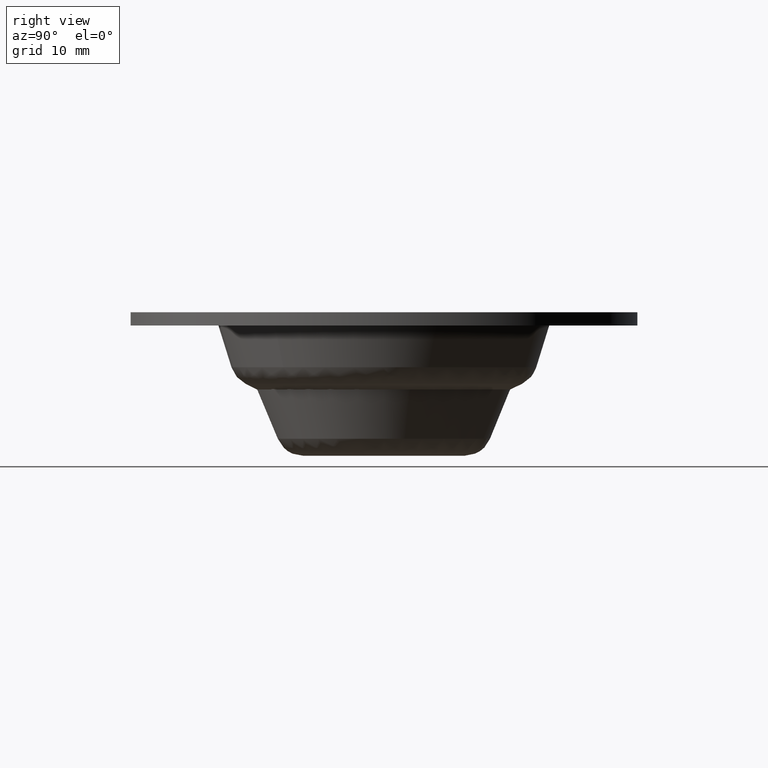
[diagram: clean part render]
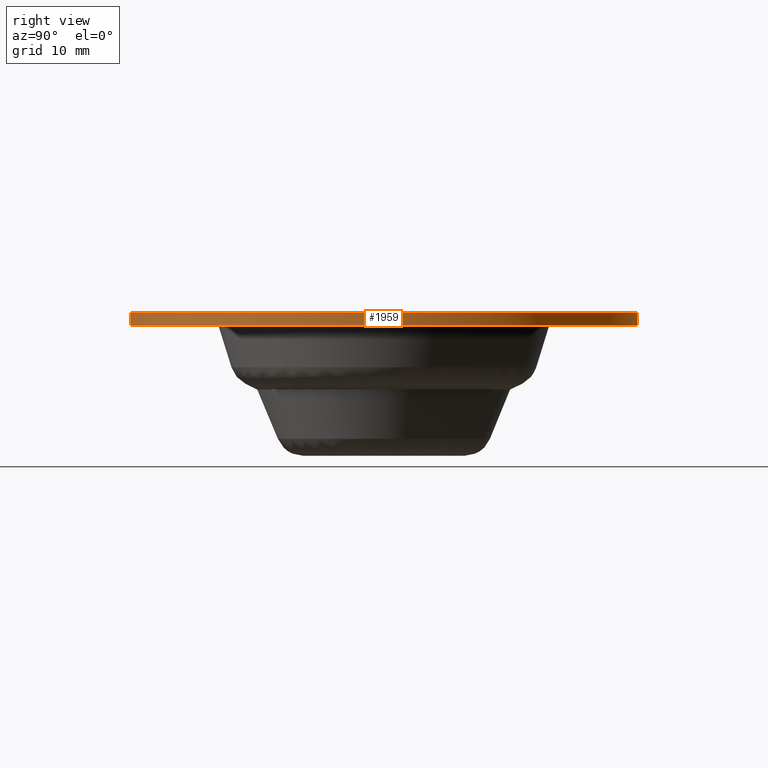
[diagram: same view with one face highlighted and labeled with its STEP entity id]
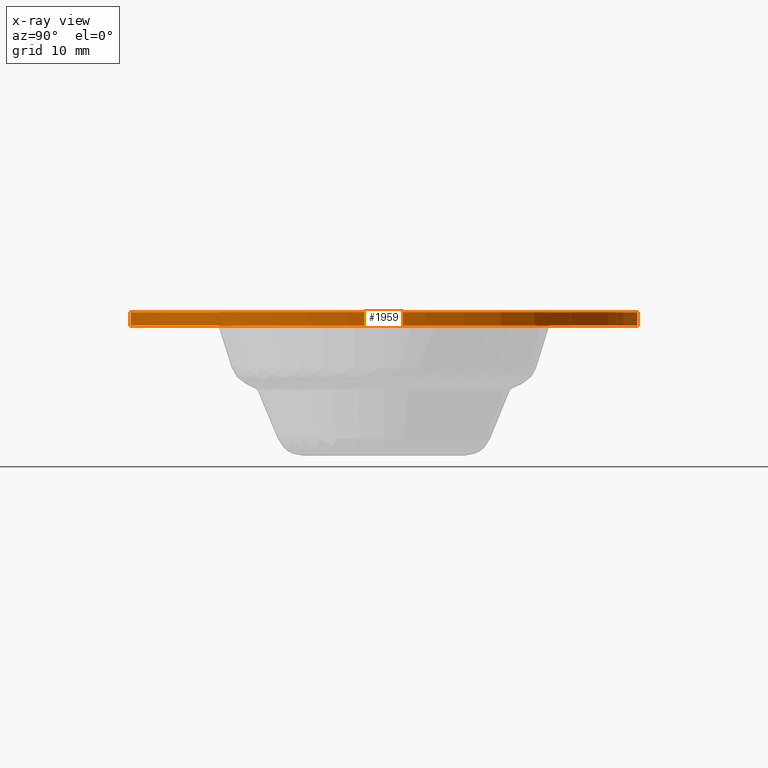
[diagram: x-ray of the same camera — body ghosted, the highlighted face saturated]
A machine part, right view. The second image highlights one B-rep face of the part: STEP entity #1959.
The next image is the same camera in x-ray: the body ghosted, the highlighted face saturated — about 0% of this face is hidden behind the body in this view.
In plain terms, the highlighted face is a freeform B-spline surface patch.
Its self-contained STEP definition (entity closure, byte-faithful):
#1857=CARTESIAN_POINT('',(-2.714787397105444,22.839219106364329,13.029999999999999));
#1858=CARTESIAN_POINT('',(-2.061138758673486,22.916915155317934,13.030000000000001));
#1859=CARTESIAN_POINT('',(-1.404116409301711,22.957100363702938,13.029999999999999));
#1860=CARTESIAN_POINT('',(21.552983954401228,24.361216773004646,13.030000000000001));
#1861=CARTESIAN_POINT('',(22.957100363702938,1.404116409301711,13.029999999999999));
#1862=CARTESIAN_POINT('',(24.361216773004646,-21.552983954401228,13.030000000000001));
#1863=CARTESIAN_POINT('',(1.404116409301711,-22.957100363702938,13.029999999999999));
#1864=CARTESIAN_POINT('',(-2.714787397105444,22.839219106364329,11.769249999999994));
#1865=CARTESIAN_POINT('',(-2.061138758673486,22.916915155317934,11.769250000000000));
#1866=CARTESIAN_POINT('',(-1.404116409301711,22.957100363702938,11.769250000000000));
#1867=CARTESIAN_POINT('',(21.552983954401228,24.361216773004646,11.769249999999998));
#1868=CARTESIAN_POINT('',(22.957100363702938,1.404116409301711,11.769250000000000));
#1869=CARTESIAN_POINT('',(24.361216773004646,-21.552983954401228,11.769249999999998));
#1870=CARTESIAN_POINT('',(1.404116409301711,-22.957100363702938,11.769250000000000));
#1878=(BOUNDED_SURFACE()B_SPLINE_SURFACE(2,1,((#1857,#1864),(#1858,#1865),(#1859,#1866),(#1860,#1867),(#1861,#1868),(#1862,#1869),(#1863,#1870)),.UNSPECIFIED.,.F.,.F.,.U.)B_SPLINE_SURFACE_WITH_KNOTS((3,2,2,3),(2,2),(0.0,1.524305909532992,39.631953647857742,77.739601386182471),(0.0,1.0),.UNSPECIFIED.)GEOMETRIC_REPRESENTATION_ITEM()RATIONAL_B_SPLINE_SURFACE(((0.977505800795127,0.977505800795127),(0.988284271247462,0.988284271247462),(1.0,1.0),(0.707106781186548,0.707106781186548),(1.0,1.0),(0.707106781186548,0.707106781186548),(1.0,1.0)))REPRESENTATION_ITEM('')SURFACE());
#1879=CARTESIAN_POINT('',(-2.714772836399791,22.839220837115491,11.800000000000431));
#1880=VERTEX_POINT('',#1879);
#1881=CARTESIAN_POINT('',(23.0,0.0,11.800000000000001));
#1882=VERTEX_POINT('',#1881);
#1883=CARTESIAN_POINT('',(-2.714772836399791,22.839220837115491,11.800000000000432));
#1884=CARTESIAN_POINT('',(-1.362147394674841,22.999999999999993,11.799999999999995));
#1885=CARTESIAN_POINT('',(0.0,23.0,11.800000000000001));
#1886=CARTESIAN_POINT('',(22.999999999999993,22.999999999999993,11.799999999999999));
#1887=CARTESIAN_POINT('',(23.0,0.0,11.800000000000001));
#1895=(BOUNDED_CURVE()B_SPLINE_CURVE(2,(#1883,#1884,#1885,#1886,#1887),.UNSPECIFIED.,.F.,.U.)B_SPLINE_CURVE_WITH_KNOTS((3,2,3),(0.229562581260426,0.250000000000000,0.500000000000000),.UNSPECIFIED.)CURVE()GEOMETRIC_REPRESENTATION_ITEM()RATIONAL_B_SPLINE_CURVE((0.956026965372175,0.976056074564511,1.0,0.707106781186548,1.0))REPRESENTATION_ITEM(''));
#1896=EDGE_CURVE('',#1880,#1882,#1895,.T.);
#1897=ORIENTED_EDGE('',*,*,#1896,.F.);
#1898=CARTESIAN_POINT('',(-2.714773016000227,22.839220815767490,13.0));
#1899=VERTEX_POINT('',#1898);
#1900=CARTESIAN_POINT('',(-2.714773016000227,22.839220815767490,13.0));
#1901=CARTESIAN_POINT('',(-2.714772836399791,22.839220837115491,11.800000000000431));
#1902=QUASI_UNIFORM_CURVE('',1,(#1900,#1901),.UNSPECIFIED.,.F.,.U.);
#1903=EDGE_CURVE('',#1899,#1880,#1902,.T.);
#1904=ORIENTED_EDGE('',*,*,#1903,.F.);
#1905=CARTESIAN_POINT('',(23.0,0.0,13.0));
#1906=VERTEX_POINT('',#1905);
#1907=CARTESIAN_POINT('',(-2.714773016000227,22.839220815767487,13.000000000000004));
#1908=CARTESIAN_POINT('',(-1.362147485424400,22.999999999999996,13.000000000000004));
#1909=CARTESIAN_POINT('',(0.0,23.0,13.0));
#1910=CARTESIAN_POINT('',(22.999999999999993,22.999999999999993,13.000000000000002));
#1911=CARTESIAN_POINT('',(23.0,0.0,13.0));
#1919=(BOUNDED_CURVE()B_SPLINE_CURVE(2,(#1907,#1908,#1909,#1910,#1911),.UNSPECIFIED.,.F.,.U.)B_SPLINE_CURVE_WITH_KNOTS((3,2,3),(0.229562579931437,0.250000000000000,0.500000000000000),.UNSPECIFIED.)CURVE()GEOMETRIC_REPRESENTATION_ITEM()RATIONAL_B_SPLINE_CURVE((0.956026962767301,0.976056073007504,1.0,0.707106781186548,1.0))REPRESENTATION_ITEM(''));
#1920=EDGE_CURVE('',#1899,#1906,#1919,.T.);
#1921=ORIENTED_EDGE('',*,*,#1920,.T.);
#1922=CARTESIAN_POINT('',(1.404108273267076,-22.957100861321241,13.0));
#1923=VERTEX_POINT('',#1922);
#1924=CARTESIAN_POINT('',(23.0,0.0,13.0));
#1925=CARTESIAN_POINT('',(22.999999999999993,-21.636247221080396,13.000000000000002));
#1926=CARTESIAN_POINT('',(1.404108273267076,-22.957100861321237,13.000000000000002));
#1934=(BOUNDED_CURVE()B_SPLINE_CURVE(2,(#1924,#1925,#1926),.UNSPECIFIED.,.F.,.U.)B_SPLINE_CURVE_WITH_KNOTS((3,3),(0.500000000000000,0.739333023392841),.UNSPECIFIED.)CURVE()GEOMETRIC_REPRESENTATION_ITEM()RATIONAL_B_SPLINE_CURVE((1.0,0.719603921640462,0.976072172731198))REPRESENTATION_ITEM(''));
#1935=EDGE_CURVE('',#1906,#1923,#1934,.T.);
#1936=ORIENTED_EDGE('',*,*,#1935,.T.);
#1937=CARTESIAN_POINT('',(1.404108171705139,-22.957100867532962,11.800000000000280));
#1938=VERTEX_POINT('',#1937);
#1939=CARTESIAN_POINT('',(1.404108273267076,-22.957100861321241,13.0));
#1940=CARTESIAN_POINT('',(1.404108171705139,-22.957100867532962,11.800000000000280));
#1941=QUASI_UNIFORM_CURVE('',1,(#1939,#1940),.UNSPECIFIED.,.F.,.U.);
#1942=EDGE_CURVE('',#1923,#1938,#1941,.T.);
#1943=ORIENTED_EDGE('',*,*,#1942,.T.);
#1944=CARTESIAN_POINT('',(23.0,0.0,11.800000000000001));
#1945=CARTESIAN_POINT('',(23.0,-21.636247316977752,11.799999999999997));
#1946=CARTESIAN_POINT('',(1.404108171705139,-22.957100867532954,11.800000000000283));
#1954=(BOUNDED_CURVE()B_SPLINE_CURVE(2,(#1944,#1945,#1946),.UNSPECIFIED.,.F.,.U.)B_SPLINE_CURVE_WITH_KNOTS((3,3),(0.500000000000000,0.739333024156186),.UNSPECIFIED.)CURVE()GEOMETRIC_REPRESENTATION_ITEM()RATIONAL_B_SPLINE_CURVE((1.0,0.719603920746148,0.976072174367192))REPRESENTATION_ITEM(''));
#1955=EDGE_CURVE('',#1882,#1938,#1954,.T.);
#1956=ORIENTED_EDGE('',*,*,#1955,.F.);
#1957=EDGE_LOOP('',(#1897,#1904,#1921,#1936,#1943,#1956));
#1958=FACE_OUTER_BOUND('',#1957,.T.);
#1959=ADVANCED_FACE('',(#1958),#1878,.T.);